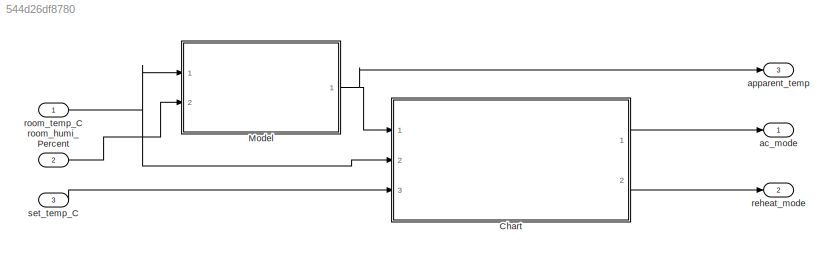
MODEL slx_544d26df8780
KIND model
CONFIG AbsTol = auto
CONFIG EnableMultiTasking = off
CONFIG FixedStep = auto
CONFIG MaxStep = auto
CONFIG MinStep = auto
CONFIG RelTol = 1e-3
CONFIG SampleTimeConstraint = Unconstrained
CONFIG SolverName = VariableStepAuto
CONFIG StartTime = 0.0
CONFIG StopTime = 10.0
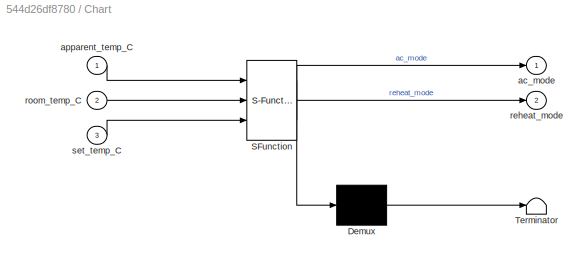
BLOCK [SubSystem] Chart
  ErrorFcn = Stateflow.Translate.translate
  PermitHierarchicalResolution = ExplicitOnly
  Ports = [3, 2]
  RequestExecContextInheritance = off
  SFBlockType = Chart
  TreatAsAtomicUnit = on
BLOCK [Demux] Chart/ Demux 
  Outputs = 1
  Ports = [1, 1]
BLOCK [S-Function] Chart/ SFunction 
  EnableBusSupport = on
  FunctionName = sf_sfun
  PortCounts = [3 3]
  Ports = [3, 3]
  SFcnIsStateOwnerBlock = off
  SFunctionDeploymentMode = off
  Tag = Stateflow S-Function 3
BLOCK [Terminator] Chart/ Terminator 
BLOCK [Outport] Chart/ac_mode
BLOCK [Inport] Chart/apparent_temp_C
BLOCK [Outport] Chart/reheat_mode
  Port = 2
BLOCK [Inport] Chart/room_temp_C
  Port = 2
BLOCK [Inport] Chart/set_temp_C
  Port = 3
BLOCK [ModelReference] Model
  ModelNameDialog = apparent_temp.slx
  ModelReferenceVersion = 1.3
  Ports = [2, 1]
BLOCK [Outport] ac_mode
BLOCK [Outport] apparent_temp
  Port = 3
BLOCK [Outport] reheat_mode
  Port = 2
BLOCK [Inport] room_humi_Percent
  OutDataTypeStr = double
  Port = 2
BLOCK [Inport] room_temp_C
  OutDataTypeStr = double
BLOCK [Inport] set_temp_C
  OutDataTypeStr = double
  Port = 3
LINE Chart:1 -> ac_mode:1
LINE Chart:2 -> reheat_mode:1
NET Model:1 -> Chart:1, apparent_temp:1
LINE room_humi_Percent:1 -> Model:2
NET room_temp_C:1 -> Chart:2, Model:1
LINE set_temp_C:1 -> Chart:3
note: NET lines group one-source signal fan-out (src -> all destinations, sorted); 1:1 wires keep LINE
CHART Chart states=6 transitions=9
  STATE_LABEL 'Cold\nen: ac_mode = ac_mode_enum.cold'
  STATE_LABEL 'reheat_off\nen:reheat_mode=0;'
  STATE_LABEL 'reheat_on\nen:reheat_mode = 1;\nex:reheat_mode = 0;'
  STATE_LABEL '[room_temp_C-1.5>set_temp_C]'
  STATE_LABEL '[room_temp_C-0.5<set_temp_C]'
  STATE_LABEL 'reheat_off\nen:reheat_mode=0;'
  STATE_LABEL 'reheat_on\nen:reheat_mode = 1;\nex:reheat_mode = 0;'
  STATE_LABEL 'Stop\nen: ac_mode = ac_mode_enum.stop'
  STATE_LABEL 'Init\nen: ac_mode = ac_mode_enum.stop'
  STATE_LABEL 'Hot\nen: ac_mode = ac_mode_enum.hot'
CHART  states=0 transitions=0
